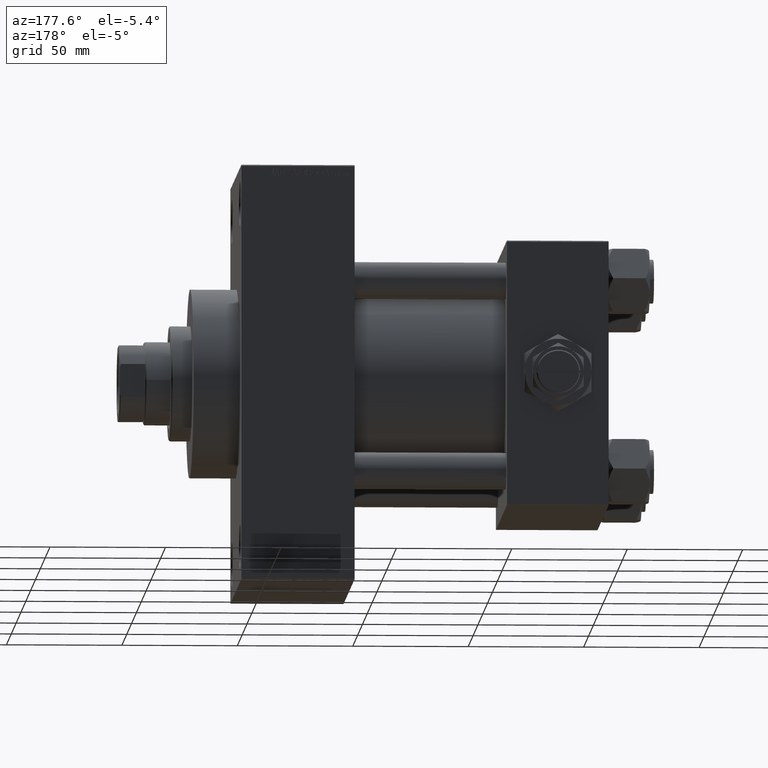
[diagram: clean part render]
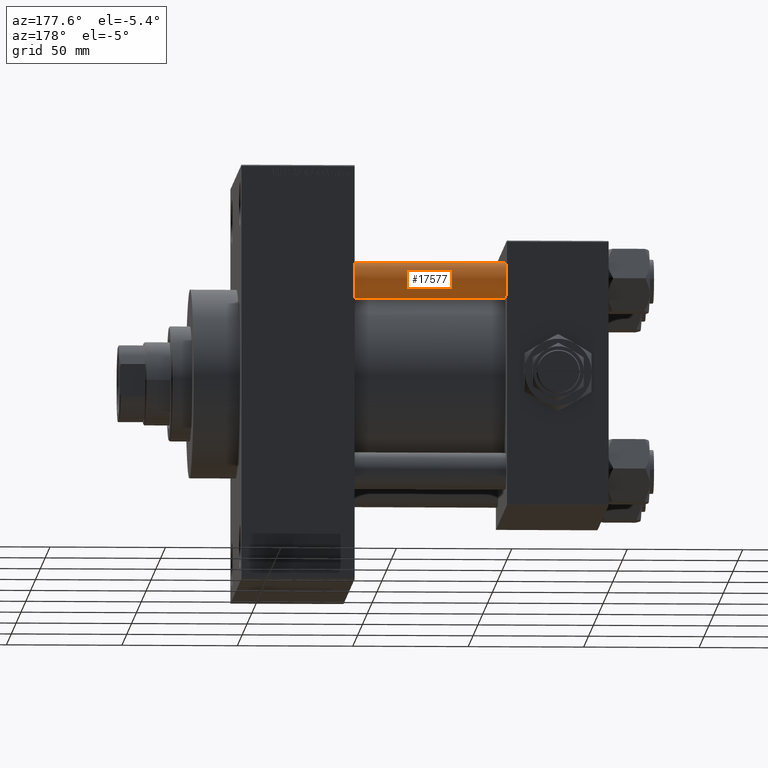
[diagram: same view with one face highlighted and labeled with its STEP entity id]
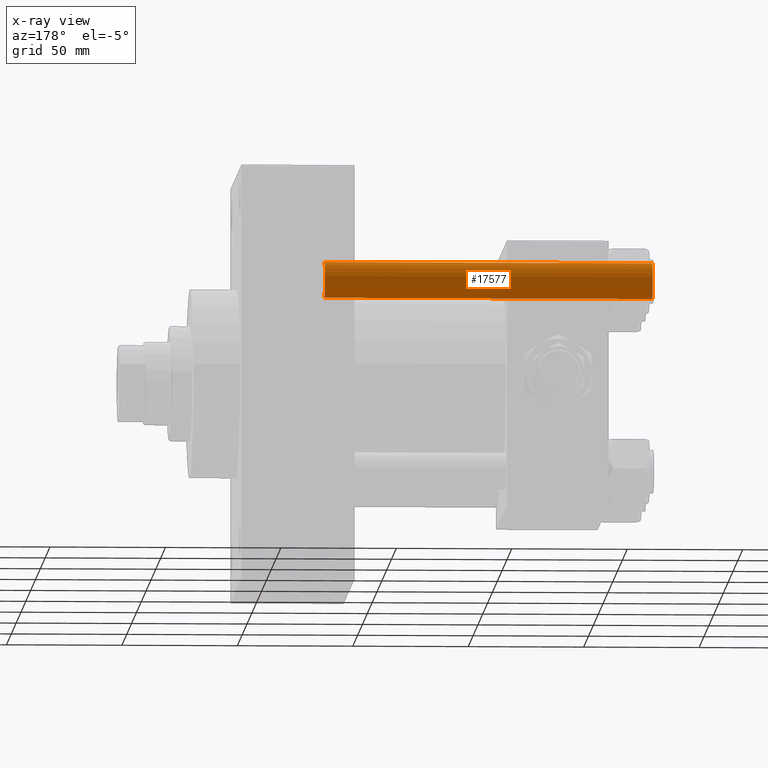
[diagram: x-ray of the same camera — body ghosted, the highlighted face saturated]
A machine part, auxiliary view. The second image highlights one B-rep face of the part: STEP entity #17577.
The next image is the same camera in x-ray: the body ghosted, the highlighted face saturated — about 0% of this face is hidden behind the body in this view.
In plain terms, the highlighted cylindrical surface (edge-blend (fillet) strip) has radius 8 mm, axis along (-1, -0, 0).
Its self-contained STEP definition (entity closure, byte-faithful):
#1611 = EDGE_LOOP ( 'NONE', ( #27656, #46362, #14033, #2325 ) ) ;
#1845 = CARTESIAN_POINT ( 'NONE',  ( 8.000000000000000000, 9.797174393178825657E-16, 142.4999999999999716 ) ) ;
#2184 = VECTOR ( 'NONE', #14878, 1000.000000000000000 ) ;
#2325 = ORIENTED_EDGE ( 'NONE', *, *, #23626, .F. ) ;
#3502 = FACE_OUTER_BOUND ( 'NONE', #1611, .T. ) ;
#5040 = CIRCLE ( 'NONE', #15401, 8.000000000000000000 ) ;
#5173 = VERTEX_POINT ( 'NONE', #41850 ) ;
#6180 = DIRECTION ( 'NONE',  ( -0.000000000000000000, -0.000000000000000000, 1.000000000000000000 ) ) ;
#7505 = DIRECTION ( 'NONE',  ( -1.000000000000000000, 0.000000000000000000, 0.000000000000000000 ) ) ;
#8109 = CARTESIAN_POINT ( 'NONE',  ( 8.000000000000000000, 9.797174393178825657E-16, 143.0000000000000000 ) ) ;
#9862 = DIRECTION ( 'NONE',  ( 0.000000000000000000, 0.000000000000000000, -1.000000000000000000 ) ) ;
#10529 = VERTEX_POINT ( 'NONE', #40655 ) ;
#11118 = LINE ( 'NONE', #8109, #2184 ) ;
#11753 = CYLINDRICAL_SURFACE ( 'NONE', #34716, 8.000000000000000000 ) ;
#13439 = CARTESIAN_POINT ( 'NONE',  ( 0.000000000000000000, 0.000000000000000000, 0.4999999999999726885 ) ) ;
#14033 = ORIENTED_EDGE ( 'NONE', *, *, #38368, .T. ) ;
#14878 = DIRECTION ( 'NONE',  ( -0.000000000000000000, -0.000000000000000000, -1.000000000000000000 ) ) ;
#15401 = AXIS2_PLACEMENT_3D ( 'NONE', #43662, #9862, #36634 ) ;
#17577 = ADVANCED_FACE ( 'NONE', ( #3502 ), #11753, .T. ) ;
#20415 = VECTOR ( 'NONE', #46248, 1000.000000000000000 ) ;
#23626 = EDGE_CURVE ( 'NONE', #10529, #5173, #35008, .T. ) ;
#27656 = ORIENTED_EDGE ( 'NONE', *, *, #37683, .T. ) ;
#28710 = DIRECTION ( 'NONE',  ( 1.000000000000000000, 0.000000000000000000, 0.000000000000000000 ) ) ;
#31261 = EDGE_CURVE ( 'NONE', #49482, #34147, #11118, .T. ) ;
#32983 = AXIS2_PLACEMENT_3D ( 'NONE', #13439, #6180, #28710 ) ;
#34147 = VERTEX_POINT ( 'NONE', #48278 ) ;
#34716 = AXIS2_PLACEMENT_3D ( 'NONE', #46519, #49283, #7505 ) ;
#35008 = LINE ( 'NONE', #46764, #20415 ) ;
#36634 = DIRECTION ( 'NONE',  ( 1.000000000000000000, 0.000000000000000000, 0.000000000000000000 ) ) ;
#37683 = EDGE_CURVE ( 'NONE', #10529, #49482, #5040, .T. ) ;
#38368 = EDGE_CURVE ( 'NONE', #34147, #5173, #38562, .T. ) ;
#38562 = CIRCLE ( 'NONE', #32983, 8.000000000000000000 ) ;
#40655 = CARTESIAN_POINT ( 'NONE',  ( -8.000000000000000000, 0.000000000000000000, 142.4999999999999716 ) ) ;
#41850 = CARTESIAN_POINT ( 'NONE',  ( -8.000000000000000000, 0.000000000000000000, 0.4999999999999726885 ) ) ;
#43662 = CARTESIAN_POINT ( 'NONE',  ( 0.000000000000000000, 0.000000000000000000, 142.4999999999999716 ) ) ;
#46248 = DIRECTION ( 'NONE',  ( -0.000000000000000000, -0.000000000000000000, -1.000000000000000000 ) ) ;
#46362 = ORIENTED_EDGE ( 'NONE', *, *, #31261, .T. ) ;
#46519 = CARTESIAN_POINT ( 'NONE',  ( 0.000000000000000000, 0.000000000000000000, 143.0000000000000000 ) ) ;
#46764 = CARTESIAN_POINT ( 'NONE',  ( -8.000000000000000000, 0.000000000000000000, 143.0000000000000000 ) ) ;
#48278 = CARTESIAN_POINT ( 'NONE',  ( 8.000000000000000000, 9.797174393178825657E-16, 0.4999999999999726885 ) ) ;
#49283 = DIRECTION ( 'NONE',  ( -0.000000000000000000, -0.000000000000000000, -1.000000000000000000 ) ) ;
#49482 = VERTEX_POINT ( 'NONE', #1845 ) ;